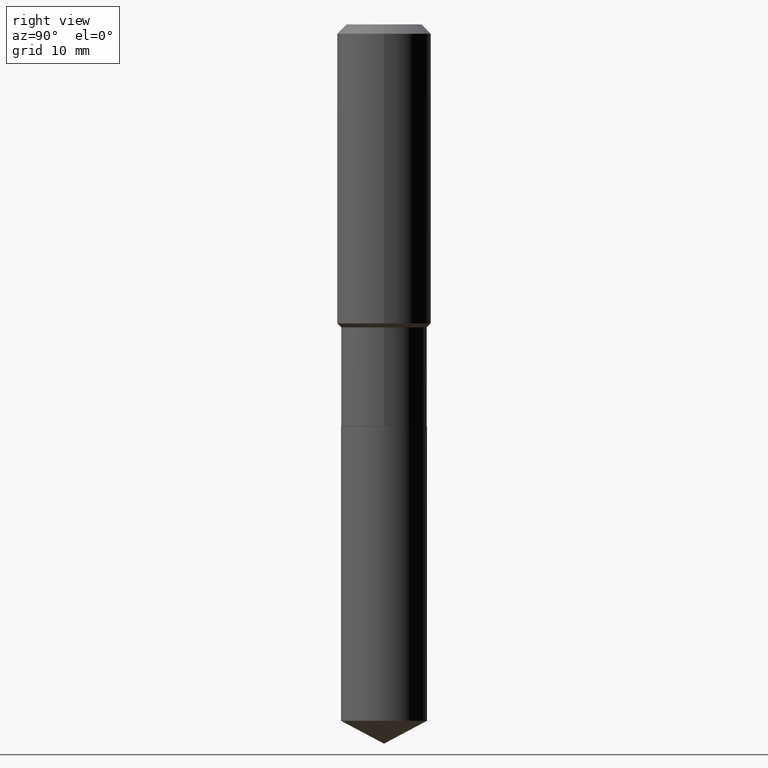
[diagram: clean part render]
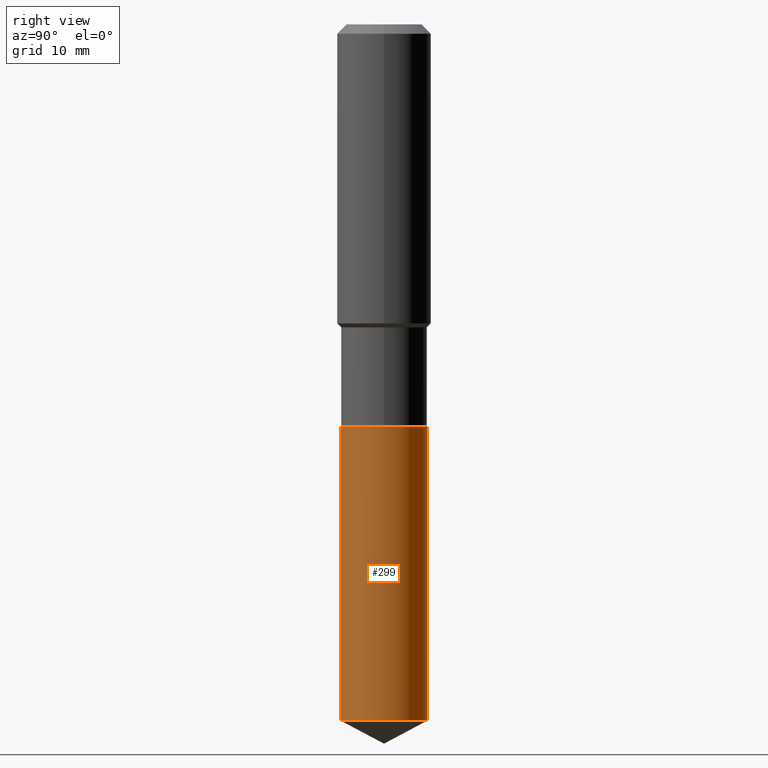
[diagram: same view with one face highlighted and labeled with its STEP entity id]
A machine part, right view. The second image highlights one B-rep face of the part: STEP entity #299.
In plain terms, the highlighted cylindrical surface (partial cylindrical patch) has radius 6.3995 mm, axis along (-0, 0, 1).
Its self-contained STEP definition (entity closure, byte-faithful):
#8 = CARTESIAN_POINT ( 'NONE',  ( -1.759357446642997213E-15, -0.2519500000000082229, -2.354299999999999393 ) ) ;
#20 = DIRECTION ( 'NONE',  ( -6.982962677686265922E-15, -1.000000000000000000, 3.252845398290450098E-15 ) ) ;
#55 = ORIENTED_EDGE ( 'NONE', *, *, #410, .F. ) ;
#79 = CYLINDRICAL_SURFACE ( 'NONE', #393, 0.2519500000000000073 ) ;
#113 = DIRECTION ( 'NONE',  ( -2.445732278377952025E-29, 3.491104031667128479E-15, 1.000000000000000000 ) ) ;
#119 = CIRCLE ( 'NONE', #213, 0.2519500000000000073 ) ;
#141 = VERTEX_POINT ( 'NONE', #301 ) ;
#148 = CARTESIAN_POINT ( 'NONE',  ( 1.790212422747629662E-15, 0.2519499999999917361, -2.354300000000001170 ) ) ;
#151 = DIRECTION ( 'NONE',  ( -2.445732278377951745E-29, 3.491104031667128479E-15, 1.000000000000000000 ) ) ;
#159 = ORIENTED_EDGE ( 'NONE', *, *, #289, .T. ) ;
#160 = DIRECTION ( 'NONE',  ( -6.982962677686265922E-15, -1.000000000000000000, 4.337127197720600657E-15 ) ) ;
#161 = CARTESIAN_POINT ( 'NONE',  ( 1.790212422747672261E-15, 0.2519499999999917361, -2.354300000000001170 ) ) ;
#171 = EDGE_CURVE ( 'NONE', #327, #283, #405, .T. ) ;
#203 = VECTOR ( 'NONE', #413, 39.37007874015748143 ) ;
#213 = AXIS2_PLACEMENT_3D ( 'NONE', #414, #151, #160 ) ;
#227 = CARTESIAN_POINT ( 'NONE',  ( -1.759357446642997213E-15, -0.2519500000000082229, -2.354299999999999393 ) ) ;
#232 = CARTESIAN_POINT ( 'NONE',  ( -1.759357446642955206E-15, -0.2519500000000142181, -4.078635808692890663 ) ) ;
#263 = FACE_OUTER_BOUND ( 'NONE', #404, .T. ) ;
#267 = VECTOR ( 'NONE', #113, 39.37007874015748143 ) ;
#283 = VERTEX_POINT ( 'NONE', #8 ) ;
#289 = EDGE_CURVE ( 'NONE', #327, #141, #119, .T. ) ;
#293 = EDGE_CURVE ( 'NONE', #141, #355, #488, .T. ) ;
#299 = ADVANCED_FACE ( 'NONE', ( #263 ), #79, .T. ) ;
#301 = CARTESIAN_POINT ( 'NONE',  ( 1.790212422747671867E-15, 0.2519499999999857409, -4.078635808692893328 ) ) ;
#303 = CARTESIAN_POINT ( 'NONE',  ( 5.757367210401668198E-29, -8.219994516038419081E-15, -2.354300000000000281 ) ) ;
#327 = VERTEX_POINT ( 'NONE', #232 ) ;
#337 = DIRECTION ( 'NONE',  ( -6.982962677686265922E-15, -1.000000000000000000, 3.252845398290450098E-15 ) ) ;
#351 = CARTESIAN_POINT ( 'NONE',  ( 5.757367210401668198E-29, -8.219994516038419081E-15, -2.354300000000000281 ) ) ;
#352 = DIRECTION ( 'NONE',  ( -2.445732278377951745E-29, 3.491104031667128479E-15, 1.000000000000000000 ) ) ;
#355 = VERTEX_POINT ( 'NONE', #161 ) ;
#385 = ORIENTED_EDGE ( 'NONE', *, *, #293, .T. ) ;
#393 = AXIS2_PLACEMENT_3D ( 'NONE', #303, #449, #337 ) ;
#404 = EDGE_LOOP ( 'NONE', ( #159, #385, #55, #428 ) ) ;
#405 = LINE ( 'NONE', #227, #203 ) ;
#410 = EDGE_CURVE ( 'NONE', #283, #355, #436, .T. ) ;
#413 = DIRECTION ( 'NONE',  ( -2.445732278377952025E-29, 3.491104031667128479E-15, 1.000000000000000000 ) ) ;
#414 = CARTESIAN_POINT ( 'NONE',  ( 9.974630956484820377E-29, -1.423983020971417209E-14, -4.078635808692891551 ) ) ;
#427 = AXIS2_PLACEMENT_3D ( 'NONE', #351, #352, #20 ) ;
#428 = ORIENTED_EDGE ( 'NONE', *, *, #171, .F. ) ;
#436 = CIRCLE ( 'NONE', #427, 0.2519500000000000073 ) ;
#449 = DIRECTION ( 'NONE',  ( -2.445732278377951745E-29, 3.491104031667128479E-15, 1.000000000000000000 ) ) ;
#488 = LINE ( 'NONE', #148, #267 ) ;